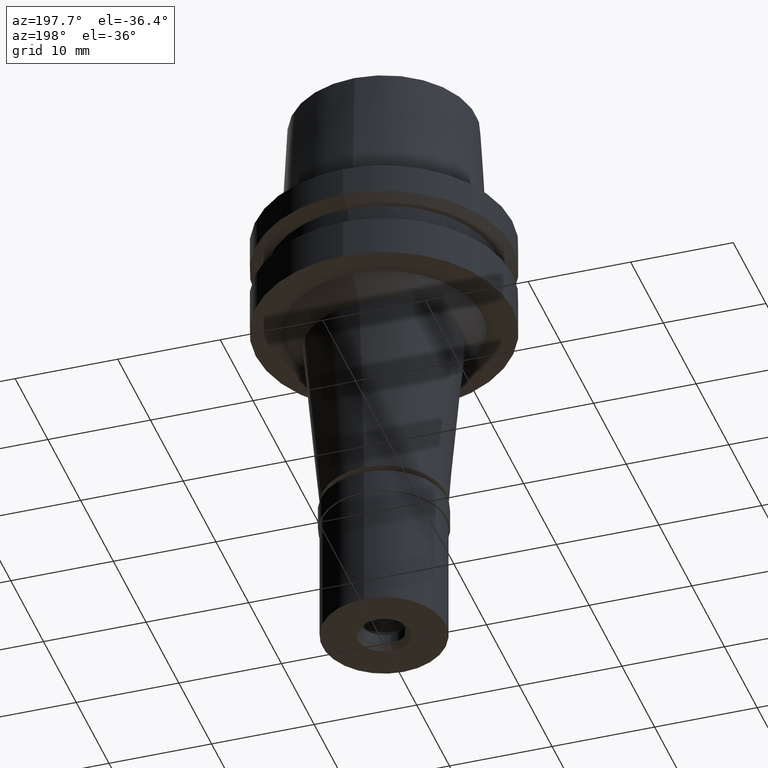
[diagram: clean part render]
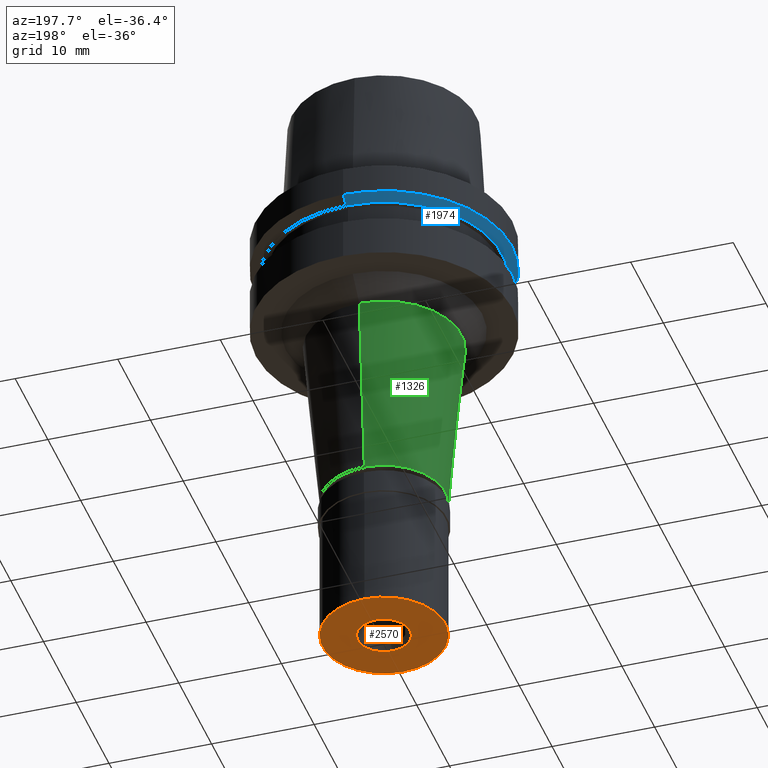
[diagram: same view with three faces highlighted in distinct colors, each labeled with its STEP entity id]
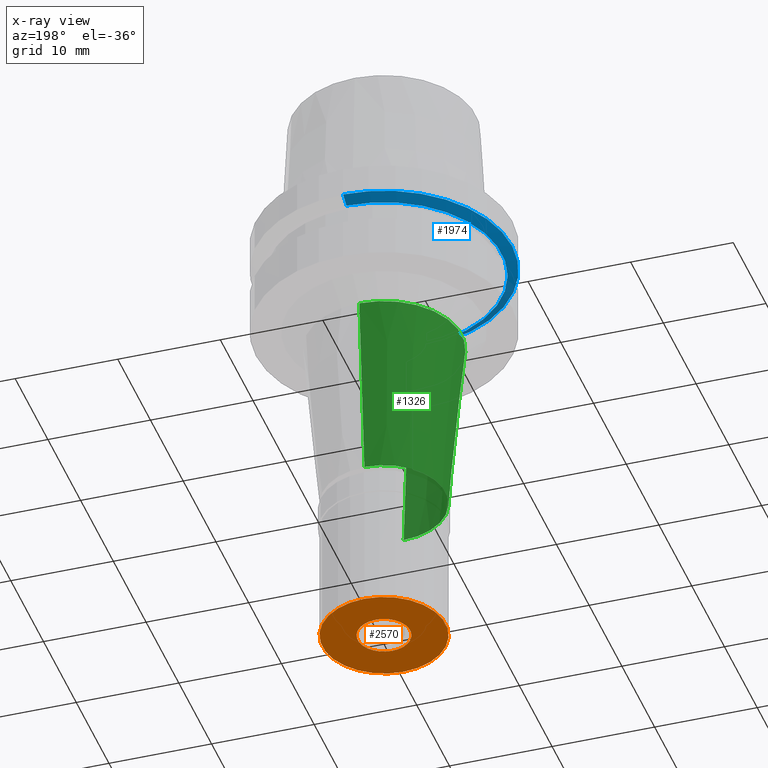
[diagram: x-ray of the same camera — body ghosted, the three highlighted faces saturated]
A machine part, auxiliary view with three faces highlighted in distinct colors.
The next image is the same camera in x-ray (body ghosted, the three faces saturated) — at least one of them is partly hidden behind the body in this view.
Their STEP definitions:

[orange] entity #2570 — the highlighted planar face has unit normal (0, 0, 1).
#120 = VERTEX_POINT ( 'NONE', #945 ) ;
#238 = DIRECTION ( 'NONE',  ( 0.0000000000000000000, 0.0000000000000000000, 1.000000000000000000 ) ) ;
#253 = CIRCLE ( 'NONE', #1467, 2.550000000000000266 ) ;
#266 = DIRECTION ( 'NONE',  ( 0.0000000000000000000, 1.000000000000000000, 0.0000000000000000000 ) ) ;
#284 = DIRECTION ( 'NONE',  ( 0.0000000000000000000, -1.000000000000000000, 0.0000000000000000000 ) ) ;
#298 = CARTESIAN_POINT ( 'NONE',  ( 0.0000000000000000000, 0.0000000000000000000, -14.50000000000000000 ) ) ;
#316 = EDGE_CURVE ( 'NONE', #120, #2474, #1905, .T. ) ;
#360 = EDGE_CURVE ( 'NONE', #2474, #120, #429, .T. ) ;
#392 = ORIENTED_EDGE ( 'NONE', *, *, #2012, .F. ) ;
#418 = DIRECTION ( 'NONE',  ( 0.0000000000000000000, 0.0000000000000000000, -1.000000000000000000 ) ) ;
#429 = CIRCLE ( 'NONE', #2127, 6.000000000000000000 ) ;
#590 = CIRCLE ( 'NONE', #861, 2.550000000000000266 ) ;
#689 = CARTESIAN_POINT ( 'NONE',  ( 0.0000000000000000000, -2.550000000000000266, -14.50000000000000000 ) ) ;
#729 = AXIS2_PLACEMENT_3D ( 'NONE', #2412, #1137, #1375 ) ;
#861 = AXIS2_PLACEMENT_3D ( 'NONE', #298, #1330, #284 ) ;
#945 = CARTESIAN_POINT ( 'NONE',  ( 0.0000000000000000000, -6.000000000000000000, -14.50000000000000000 ) ) ;
#1137 = DIRECTION ( 'NONE',  ( 0.0000000000000000000, 0.0000000000000000000, 1.000000000000000000 ) ) ;
#1159 = CARTESIAN_POINT ( 'NONE',  ( 0.0000000000000000000, 0.0000000000000000000, -14.50000000000000000 ) ) ;
#1249 = CARTESIAN_POINT ( 'NONE',  ( 0.0000000000000000000, 6.000000000000000000, -14.50000000000000000 ) ) ;
#1250 = ORIENTED_EDGE ( 'NONE', *, *, #2443, .F. ) ;
#1259 = FACE_OUTER_BOUND ( 'NONE', #1301, .T. ) ;
#1301 = EDGE_LOOP ( 'NONE', ( #2537, #2330 ) ) ;
#1302 = PLANE ( 'NONE',  #2552 ) ;
#1330 = DIRECTION ( 'NONE',  ( 0.0000000000000000000, 0.0000000000000000000, -1.000000000000000000 ) ) ;
#1375 = DIRECTION ( 'NONE',  ( 0.0000000000000000000, -1.000000000000000000, 0.0000000000000000000 ) ) ;
#1395 = EDGE_LOOP ( 'NONE', ( #1250, #392 ) ) ;
#1446 = CARTESIAN_POINT ( 'NONE',  ( 0.0000000000000000000, 0.0000000000000000000, -14.50000000000000000 ) ) ;
#1467 = AXIS2_PLACEMENT_3D ( 'NONE', #1446, #418, #266 ) ;
#1690 = FACE_BOUND ( 'NONE', #1395, .T. ) ;
#1728 = VERTEX_POINT ( 'NONE', #2305 ) ;
#1905 = CIRCLE ( 'NONE', #729, 6.000000000000000000 ) ;
#2012 = EDGE_CURVE ( 'NONE', #2670, #1728, #590, .T. ) ;
#2093 = DIRECTION ( 'NONE',  ( 1.000000000000000000, 0.0000000000000000000, 0.0000000000000000000 ) ) ;
#2127 = AXIS2_PLACEMENT_3D ( 'NONE', #1159, #2224, #2212 ) ;
#2212 = DIRECTION ( 'NONE',  ( 0.0000000000000000000, 1.000000000000000000, 0.0000000000000000000 ) ) ;
#2224 = DIRECTION ( 'NONE',  ( 0.0000000000000000000, 0.0000000000000000000, 1.000000000000000000 ) ) ;
#2305 = CARTESIAN_POINT ( 'NONE',  ( 0.0000000000000000000, 2.550000000000000266, -14.50000000000000000 ) ) ;
#2330 = ORIENTED_EDGE ( 'NONE', *, *, #316, .F. ) ;
#2412 = CARTESIAN_POINT ( 'NONE',  ( 0.0000000000000000000, 0.0000000000000000000, -14.50000000000000000 ) ) ;
#2443 = EDGE_CURVE ( 'NONE', #1728, #2670, #253, .T. ) ;
#2474 = VERTEX_POINT ( 'NONE', #1249 ) ;
#2525 = CARTESIAN_POINT ( 'NONE',  ( 0.0000000000000000000, 0.0000000000000000000, -14.50000000000000000 ) ) ;
#2537 = ORIENTED_EDGE ( 'NONE', *, *, #360, .F. ) ;
#2552 = AXIS2_PLACEMENT_3D ( 'NONE', #2525, #238, #2093 ) ;
#2570 = ADVANCED_FACE ( 'NONE', ( #1259, #1690 ), #1302, .F. ) ;
#2670 = VERTEX_POINT ( 'NONE', #689 ) ;

[blue] entity #1974 — the highlighted conical surface has half-angle 60 deg.
#84 = CARTESIAN_POINT ( 'NONE',  ( 0.0000000000000000000, 0.0000000000000000000, -3.499999999997000177 ) ) ;
#111 = EDGE_CURVE ( 'NONE', #900, #841, #1208, .T. ) ;
#134 = FACE_OUTER_BOUND ( 'NONE', #2437, .T. ) ;
#191 = LINE ( 'NONE', #223, #1729 ) ;
#199 = CIRCLE ( 'NONE', #1117, 11.48205080757000118 ) ;
#223 = CARTESIAN_POINT ( 'NONE',  ( 0.0000000000000000000, 12.50000000000000000, -2.912286759727999996 ) ) ;
#249 = DIRECTION ( 'NONE',  ( 0.0000000000000000000, 1.000000000000000000, 0.0000000000000000000 ) ) ;
#604 = ORIENTED_EDGE ( 'NONE', *, *, #791, .T. ) ;
#612 = EDGE_CURVE ( 'NONE', #900, #1011, #191, .T. ) ;
#690 = ORIENTED_EDGE ( 'NONE', *, *, #1704, .F. ) ;
#720 = CARTESIAN_POINT ( 'NONE',  ( 0.0000000000000000000, 0.0000000000000000000, -2.912286759726999907 ) ) ;
#791 = EDGE_CURVE ( 'NONE', #1011, #1447, #199, .T. ) ;
#832 = CARTESIAN_POINT ( 'NONE',  ( 0.0000000000000000000, 11.48205080757000118, -3.499999999997999822 ) ) ;
#841 = VERTEX_POINT ( 'NONE', #1800 ) ;
#863 = CARTESIAN_POINT ( 'NONE',  ( 0.0000000000000000000, -12.50000000000000000, -2.912286759727999996 ) ) ;
#900 = VERTEX_POINT ( 'NONE', #2370 ) ;
#910 = AXIS2_PLACEMENT_3D ( 'NONE', #966, #2150, #2368 ) ;
#966 = CARTESIAN_POINT ( 'NONE',  ( 0.0000000000000000000, 0.0000000000000000000, -3.206143379862000042 ) ) ;
#1011 = VERTEX_POINT ( 'NONE', #832 ) ;
#1117 = AXIS2_PLACEMENT_3D ( 'NONE', #84, #2316, #249 ) ;
#1166 = AXIS2_PLACEMENT_3D ( 'NONE', #720, #1790, #1994 ) ;
#1208 = CIRCLE ( 'NONE', #1166, 12.50000000000000000 ) ;
#1447 = VERTEX_POINT ( 'NONE', #1935 ) ;
#1680 = LINE ( 'NONE', #863, #1988 ) ;
#1704 = EDGE_CURVE ( 'NONE', #841, #1447, #1680, .T. ) ;
#1729 = VECTOR ( 'NONE', #2686, 1000.000000000000114 ) ;
#1790 = DIRECTION ( 'NONE',  ( 0.0000000000000000000, 0.0000000000000000000, 1.000000000000000000 ) ) ;
#1800 = CARTESIAN_POINT ( 'NONE',  ( 0.0000000000000000000, -12.50000000000000000, -2.912286759727999996 ) ) ;
#1935 = CARTESIAN_POINT ( 'NONE',  ( 0.0000000000000000000, -11.48205080757000118, -3.499999999997000177 ) ) ;
#1974 = ADVANCED_FACE ( 'NONE', ( #134 ), #2038, .T. ) ;
#1988 = VECTOR ( 'NONE', #2502, 1000.000000000000114 ) ;
#1994 = DIRECTION ( 'NONE',  ( 0.0000000000000000000, 1.000000000000000000, 0.0000000000000000000 ) ) ;
#2038 = CONICAL_SURFACE ( 'NONE', #910, 11.99102540378000192, 1.047197551196400456 ) ;
#2083 = ORIENTED_EDGE ( 'NONE', *, *, #612, .T. ) ;
#2150 = DIRECTION ( 'NONE',  ( 0.0000000000000000000, 0.0000000000000000000, 1.000000000000000000 ) ) ;
#2316 = DIRECTION ( 'NONE',  ( 0.0000000000000000000, 0.0000000000000000000, 1.000000000000000000 ) ) ;
#2368 = DIRECTION ( 'NONE',  ( 0.0000000000000000000, 1.000000000000000000, 0.0000000000000000000 ) ) ;
#2370 = CARTESIAN_POINT ( 'NONE',  ( 0.0000000000000000000, 12.50000000000000000, -2.912286759727999996 ) ) ;
#2437 = EDGE_LOOP ( 'NONE', ( #604, #690, #2512, #2083 ) ) ;
#2502 = DIRECTION ( 'NONE',  ( 0.0000000000000000000, 0.8660254037846089048, -0.4999999999997049027 ) ) ;
#2512 = ORIENTED_EDGE ( 'NONE', *, *, #111, .F. ) ;
#2686 = DIRECTION ( 'NONE',  ( 0.0000000000000000000, -0.8660254037846089048, -0.4999999999997049027 ) ) ;

[green] entity #1326 — the highlighted conical surface has half-angle 5 deg.
#78 = DIRECTION ( 'NONE',  ( 0.0000000000000000000, 1.000000000000000000, 0.0000000000000000000 ) ) ;
#95 = CARTESIAN_POINT ( 'NONE',  ( 0.0000000000000000000, 6.000000000000000000, -29.80000000000000071 ) ) ;
#128 = EDGE_CURVE ( 'NONE', #400, #2480, #1742, .T. ) ;
#183 = CARTESIAN_POINT ( 'NONE',  ( 0.0000000000000000000, -7.557298210760999169, -12.00000000000000000 ) ) ;
#254 = AXIS2_PLACEMENT_3D ( 'NONE', #1357, #2615, #1174 ) ;
#400 = VERTEX_POINT ( 'NONE', #95 ) ;
#422 = CONICAL_SURFACE ( 'NONE', #1638, 6.778649105381000517, 0.08726646259969973729 ) ;
#545 = CIRCLE ( 'NONE', #2165, 7.557298210760999169 ) ;
#628 = CARTESIAN_POINT ( 'NONE',  ( 0.0000000000000000000, -6.000000000000000000, -29.80000000000000071 ) ) ;
#818 = CARTESIAN_POINT ( 'NONE',  ( 0.0000000000000000000, 7.557298210760999169, -12.00000000000000000 ) ) ;
#977 = LINE ( 'NONE', #183, #1821 ) ;
#1010 = CARTESIAN_POINT ( 'NONE',  ( 0.0000000000000000000, 0.0000000000000000000, -12.00000000000000000 ) ) ;
#1016 = DIRECTION ( 'NONE',  ( 0.0000000000000000000, 0.08715574274764407992, -0.9961946980917467664 ) ) ;
#1078 = ORIENTED_EDGE ( 'NONE', *, *, #128, .T. ) ;
#1079 = VERTEX_POINT ( 'NONE', #818 ) ;
#1116 = CARTESIAN_POINT ( 'NONE',  ( 0.0000000000000000000, 0.0000000000000000000, -20.89999999999999858 ) ) ;
#1134 = ORIENTED_EDGE ( 'NONE', *, *, #1917, .T. ) ;
#1174 = DIRECTION ( 'NONE',  ( 0.0000000000000000000, 1.000000000000000000, 0.0000000000000000000 ) ) ;
#1306 = CARTESIAN_POINT ( 'NONE',  ( 0.0000000000000000000, 7.557298210760999169, -12.00000000000000000 ) ) ;
#1326 = ADVANCED_FACE ( 'NONE', ( #1943 ), #422, .T. ) ;
#1357 = CARTESIAN_POINT ( 'NONE',  ( 0.0000000000000000000, 0.0000000000000000000, -29.80000000000000071 ) ) ;
#1432 = ORIENTED_EDGE ( 'NONE', *, *, #2375, .F. ) ;
#1579 = EDGE_CURVE ( 'NONE', #2136, #1079, #545, .T. ) ;
#1638 = AXIS2_PLACEMENT_3D ( 'NONE', #1116, #2565, #78 ) ;
#1738 = LINE ( 'NONE', #1306, #2428 ) ;
#1742 = CIRCLE ( 'NONE', #254, 6.000000000000000000 ) ;
#1821 = VECTOR ( 'NONE', #1016, 1000.000000000000114 ) ;
#1843 = DIRECTION ( 'NONE',  ( 0.0000000000000000000, 0.0000000000000000000, -1.000000000000000000 ) ) ;
#1917 = EDGE_CURVE ( 'NONE', #1079, #400, #1738, .T. ) ;
#1943 = FACE_OUTER_BOUND ( 'NONE', #2130, .T. ) ;
#2130 = EDGE_LOOP ( 'NONE', ( #1078, #1432, #2348, #1134 ) ) ;
#2136 = VERTEX_POINT ( 'NONE', #2579 ) ;
#2141 = DIRECTION ( 'NONE',  ( 0.0000000000000000000, -0.08715574274764407992, -0.9961946980917467664 ) ) ;
#2165 = AXIS2_PLACEMENT_3D ( 'NONE', #1010, #1843, #2669 ) ;
#2348 = ORIENTED_EDGE ( 'NONE', *, *, #1579, .T. ) ;
#2375 = EDGE_CURVE ( 'NONE', #2136, #2480, #977, .T. ) ;
#2428 = VECTOR ( 'NONE', #2141, 1000.000000000000114 ) ;
#2480 = VERTEX_POINT ( 'NONE', #628 ) ;
#2565 = DIRECTION ( 'NONE',  ( 0.0000000000000000000, 0.0000000000000000000, 1.000000000000000000 ) ) ;
#2579 = CARTESIAN_POINT ( 'NONE',  ( 0.0000000000000000000, -7.557298210760999169, -12.00000000000000000 ) ) ;
#2615 = DIRECTION ( 'NONE',  ( 0.0000000000000000000, 0.0000000000000000000, 1.000000000000000000 ) ) ;
#2669 = DIRECTION ( 'NONE',  ( 0.0000000000000000000, -1.000000000000000000, 0.0000000000000000000 ) ) ;